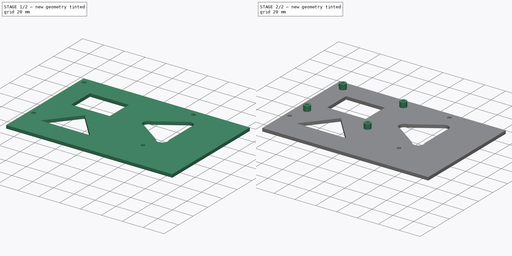
[diagram: build sequence overview — one tinted view per stage of 2, left to right]
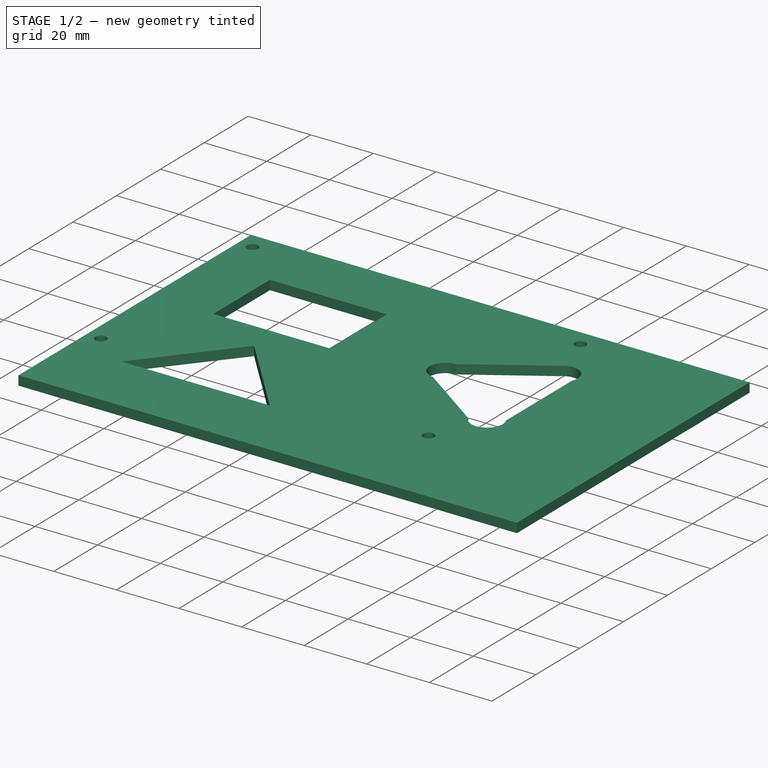
[diagram: stage 1 of 2 — iso view after this stage's code; geometry added in this stage tinted green]
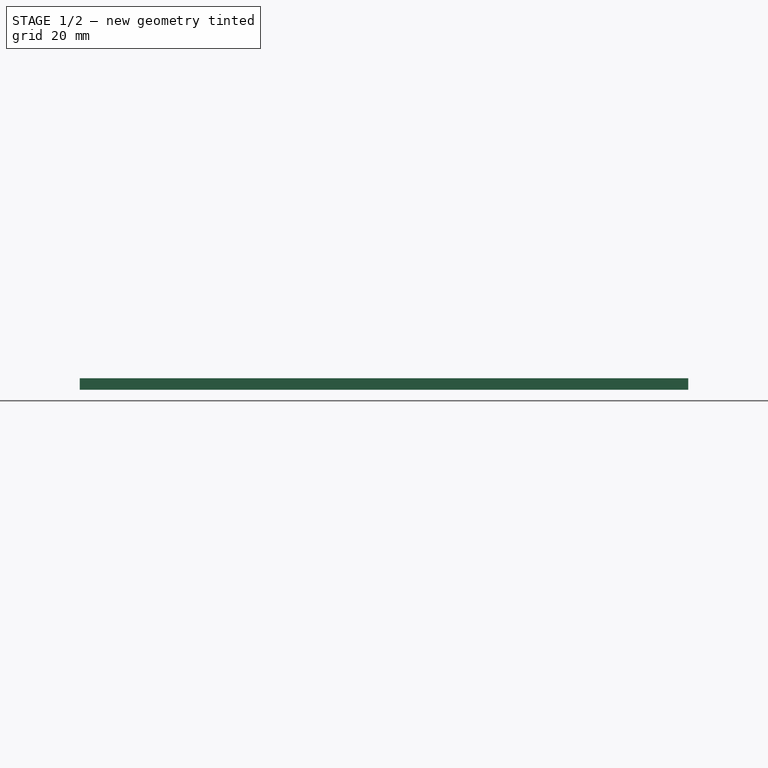
[diagram: stage 1 of 2 — front view after this stage's code; geometry added in this stage tinted green]
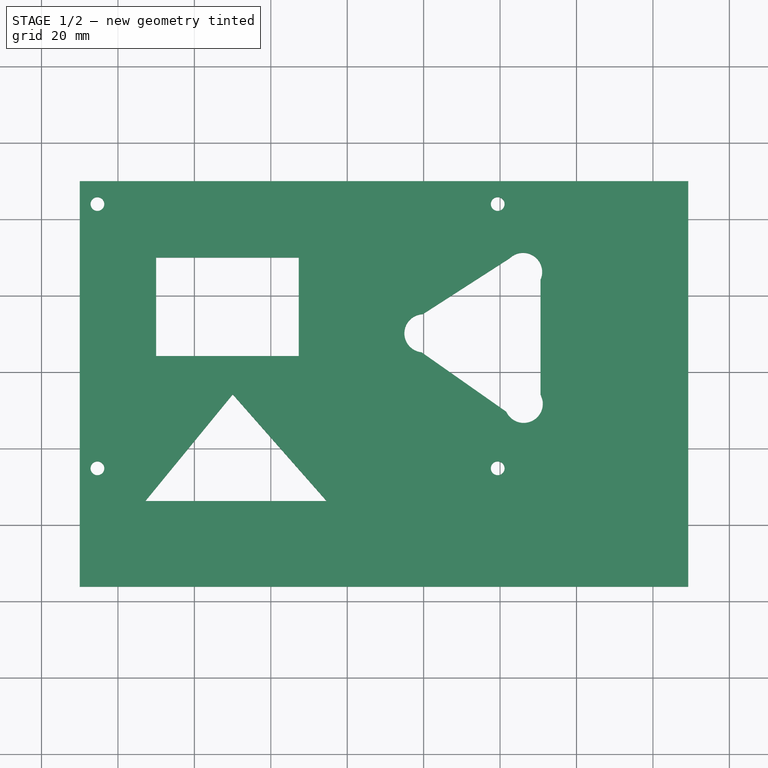
[diagram: stage 1 of 2 — top view after this stage's code; geometry added in this stage tinted green]
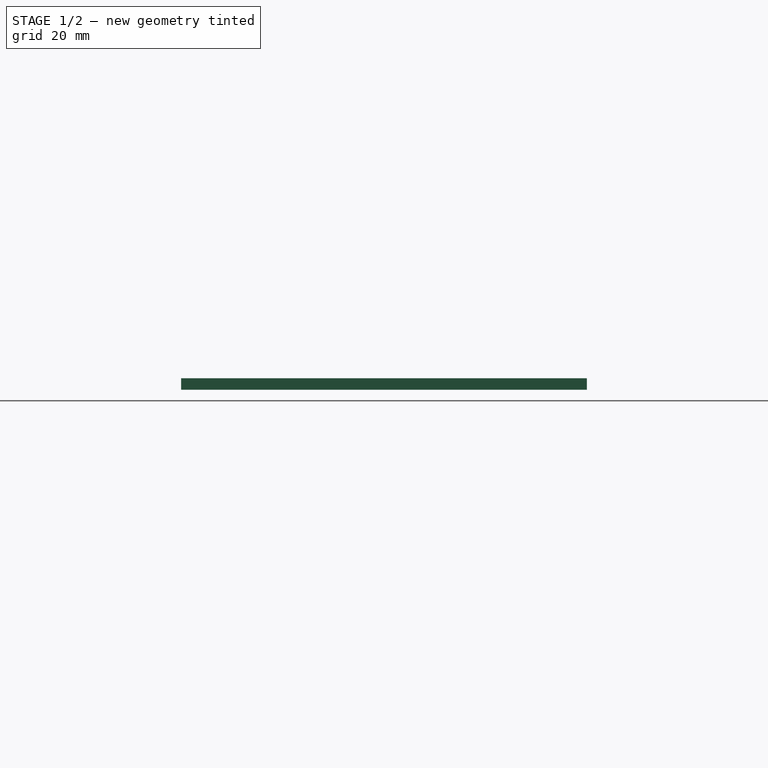
[diagram: stage 1 of 2 — right view after this stage's code; geometry added in this stage tinted green]
FCSTD DOCUMENT  (FreeCAD 0.19R24267 +99 (Git))
Label: RPI_plastic_box_adapter
License: All rights reserved
LicenseURL: http://en.wikipedia.org/wiki/All_rights_reserved
objects: Sketcher::SketchObject×2, PartDesign::Pad×2, PartDesign::Body×1
note: 7 computed .brp shape members not serialized (recipe doc carries the construction recipe); baked Part::Feature solids carry a one-line shape summary decoded from their .brp

FEATURE [Sketcher::SketchObject] Sketch001
  FullyConstrained = false
  MapMode = 5
  Support = -> [XY_Plane]
  sketch-geometry (25):
    g0: LineSegment StartX=-10 StartY=10 StartZ=0 EndX=149.247 EndY=10 EndZ=0
    g1: LineSegment StartX=149.247 StartY=10 StartZ=0 EndX=149.247 EndY=-96.1662 EndZ=0
    g2: LineSegment StartX=149.247 StartY=-96.1662 StartZ=0 EndX=-10 EndY=-96.1662 EndZ=0
    g3: LineSegment StartX=-10 StartY=-96.1662 StartZ=0 EndX=-10 EndY=10 EndZ=0
    g4: LineSegment StartX=10 StartY=-10 StartZ=0 EndX=47.3275 EndY=-10 EndZ=0
    g5: LineSegment StartX=47.3275 StartY=-10 StartZ=0 EndX=47.3275 EndY=-35.7909 EndZ=0
    g6: LineSegment StartX=47.3275 StartY=-35.7909 StartZ=0 EndX=10 EndY=-35.7909 EndZ=0
    g7: LineSegment StartX=10 StartY=-35.7909 StartZ=0 EndX=10 EndY=-10 EndZ=0
    g8: Circle CenterX=-5.37373 CenterY=3.99768 CenterZ=0 NormalX=0 NormalY=0 NormalZ=1 AngleXU=0 Radius=1.8
    g9: Circle CenterX=99.3812 CenterY=3.99768 CenterZ=0 NormalX=0 NormalY=0 NormalZ=1 AngleXU=0 Radius=1.8
    g10: Circle CenterX=-5.37373 CenterY=-65.1747 CenterZ=0 NormalX=0 NormalY=0 NormalZ=1 AngleXU=0 Radius=1.8
    g11: Circle CenterX=99.3812 CenterY=-65.1747 CenterZ=0 NormalX=0 NormalY=0 NormalZ=1 AngleXU=0 Radius=1.8
    g12: LineSegment StartX=-5.37373 StartY=3.99768 StartZ=0 EndX=99.3812 EndY=3.99768 EndZ=0
    g13: LineSegment StartX=99.3812 StartY=3.99768 StartZ=0 EndX=99.3812 EndY=-65.1747 EndZ=0
    g14: LineSegment StartX=99.3812 StartY=-65.1747 StartZ=0 EndX=-5.37373 EndY=-65.1747 EndZ=0
    g15: LineSegment StartX=-5.37373 StartY=-65.1747 StartZ=0 EndX=-5.37373 EndY=3.99768 EndZ=0
    g16: LineSegment StartX=102.544 StartY=-10.1707 StartZ=0 EndX=79.746 EndY=-24.8311 EndZ=0
    g17: LineSegment StartX=79.4573 StartY=-34.8022 StartZ=0 EndX=101.64 EndY=-50.3781 EndZ=0
    g18: LineSegment StartX=110.587 StartY=-45.9243 StartZ=0 EndX=110.587 EndY=-15.7973 EndZ=0
    g19: ArcOfCircle CenterX=106.019 CenterY=-13.7654 CenterZ=0 NormalX=0 NormalY=0 NormalZ=1 AngleXU=0 Radius=5 StartAngle=5.86469 EndAngle=8.6225
    g20: ArcOfCircle CenterX=79.9527 CenterY=-29.8268 CenterZ=0 NormalX=0 NormalY=0 NormalZ=1 AngleXU=0 Radius=5 StartAngle=1.61216 EndAngle=4.61314
    g21: ArcOfCircle CenterX=106.183 CenterY=-48.2905 CenterZ=0 NormalX=0 NormalY=0 NormalZ=1 AngleXU=0 Radius=5 StartAngle=3.57232 EndAngle=6.77616
    g22: LineSegment StartX=30.0435 StartY=-45.8129 StartZ=0 EndX=7.16619 EndY=-73.7306 EndZ=0
    g23: LineSegment StartX=7.16619 StartY=-73.7306 StartZ=0 EndX=54.6111 EndY=-73.7306 EndZ=0
    g24: LineSegment StartX=54.6111 StartY=-73.7306 StartZ=0 EndX=30.0435 EndY=-45.8129 EndZ=0
  constraints (51):
    c: Coincident(g0,g1)
    c: Coincident(g1,g2)
    c: Coincident(g2,g3)
    c: Coincident(g3,g0)
    c: Horizontal(g0)
    c: Horizontal(g2)
    c: Vertical(g1)
    c: Vertical(g3)
    c: DistanceY(g-1,g0) = 10
    c: DistanceX(g0,g-1) = 10
    c: Coincident(g4,g5)
    c: Coincident(g5,g6)
    c: Coincident(g6,g7)
    c: Coincident(g7,g4)
    c: Horizontal(g4)
    c: Horizontal(g6)
    c: Vertical(g5)
    c: Vertical(g7)
    c: DistanceY(g4,g-1) = 10
    c: DistanceX(g-1,g4) = 10
    c: Diameter(g8) = 3.6
    c: Equal(g9,g8)
    c: Equal(g10,g8)
    c: Equal(g8,g11)
    c: Coincident(g12,g13)
    c: Coincident(g13,g14)
    c: Coincident(g14,g15)
    c: Coincident(g15,g12)
    c: Horizontal(g12)
    c: Horizontal(g14)
    c: Vertical(g13)
    c: Vertical(g15)
    c: Coincident(g12,g8)
    c: Coincident(g13,g11)
    c: Coincident(g10,g14)
    c: Coincident(g9,g12)
    c: Coincident(g16,g20)
    c: Coincident(g20,g17)
    c: Coincident(g18,g21)
    c: Coincident(g21,g17)
    c: Coincident(g19,g18)
    c: Coincident(g16,g19)
    c: Vertical(g18)
    c: Diameter(g20) = 10
    c: Diameter(g19) = 10
    c: Diameter(g21) = 10
    c: Equal(g16,g17)
    c: Coincident(g23,g22)
    c: Horizontal(g23)
    c: Coincident(g24,g23)
    c: Coincident(g24,g22)
FEATURE [PartDesign::Pad] Pad
  Direction = (1,1,1)
  Length = 3
  Length2 = 100
  Profile = -> Sketch001
  Type = 0
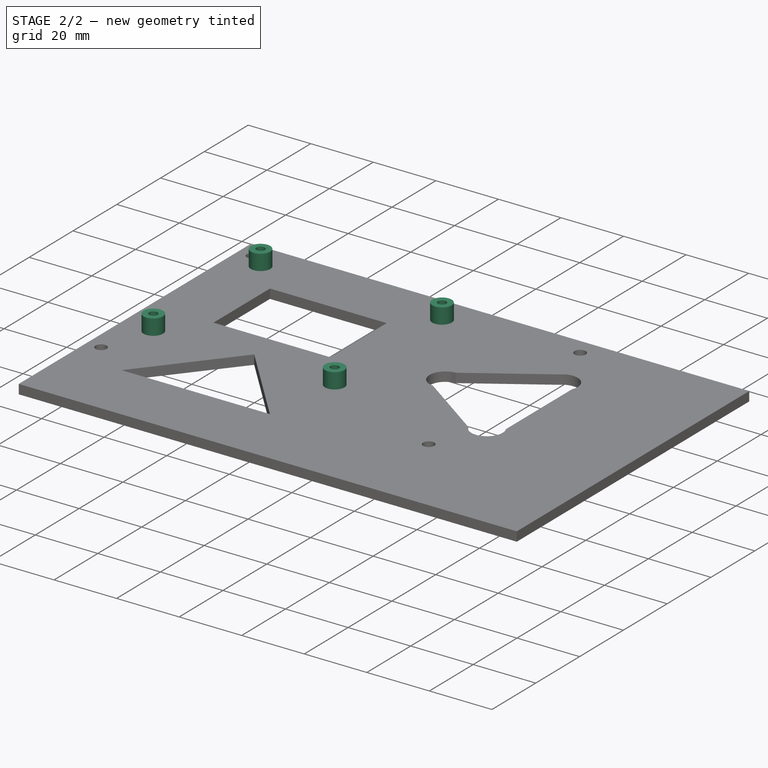
[diagram: stage 2 of 2 — iso view after this stage's code; geometry added in this stage tinted green]
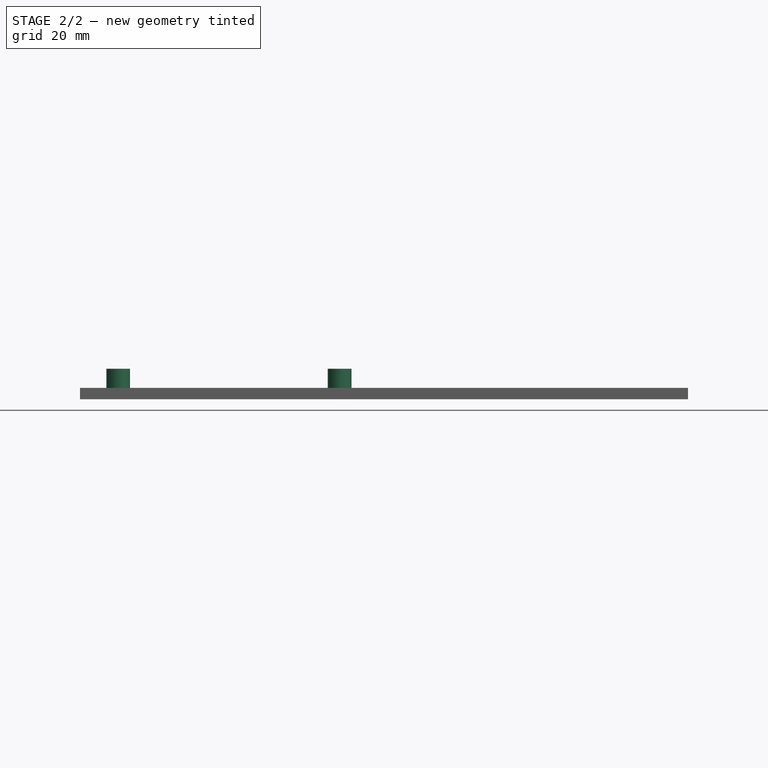
[diagram: stage 2 of 2 — front view after this stage's code; geometry added in this stage tinted green]
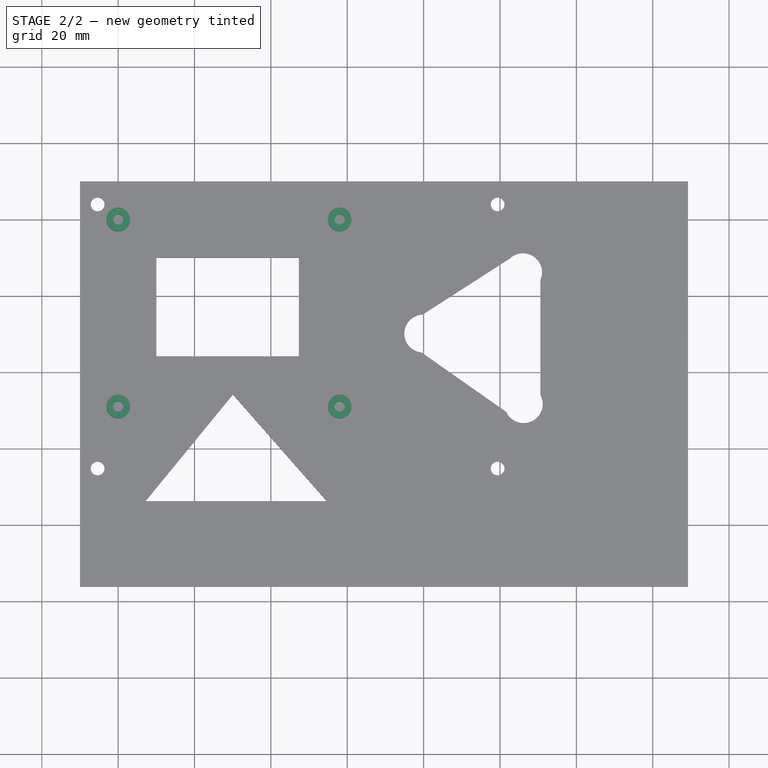
[diagram: stage 2 of 2 — top view after this stage's code; geometry added in this stage tinted green]
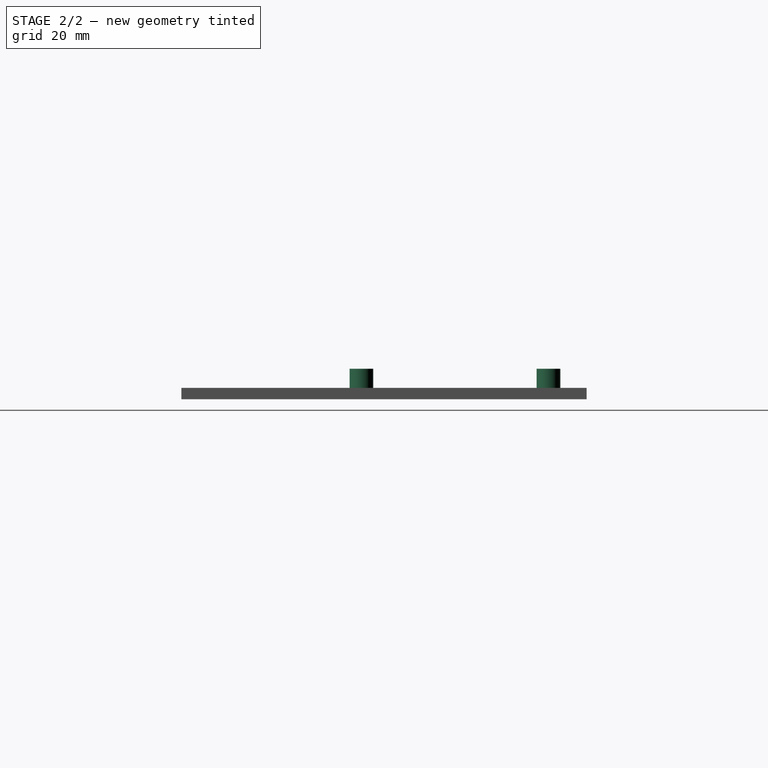
[diagram: stage 2 of 2 — right view after this stage's code; geometry added in this stage tinted green]
FEATURE [Sketcher::SketchObject] Sketch
  FullyConstrained = true
  MapMode = 5
  Placement = pos=(0,0,3) rot=(0,0,1;0rad)
  Support = -> [Pad]
  sketch-geometry (12):
    g0: Circle CenterX=0 CenterY=0 CenterZ=0 NormalX=0 NormalY=0 NormalZ=1 AngleXU=0 Radius=3.1
    g1: Circle CenterX=0 CenterY=0 CenterZ=0 NormalX=0 NormalY=0 NormalZ=1 AngleXU=0 Radius=1.35
    g2: Circle CenterX=58 CenterY=8e-16 CenterZ=0 NormalX=0 NormalY=0 NormalZ=1 AngleXU=0 Radius=3.1
    g3: Circle CenterX=58 CenterY=8e-16 CenterZ=0 NormalX=0 NormalY=0 NormalZ=1 AngleXU=0 Radius=1.35
    g4: Circle CenterX=5.9e-15 CenterY=-49 CenterZ=0 NormalX=0 NormalY=0 NormalZ=1 AngleXU=0 Radius=3.1
    g5: Circle CenterX=5.9e-15 CenterY=-49 CenterZ=0 NormalX=0 NormalY=0 NormalZ=1 AngleXU=0 Radius=1.35
    g6: Circle CenterX=58 CenterY=-49 CenterZ=0 NormalX=0 NormalY=0 NormalZ=1 AngleXU=0 Radius=3.1
    g7: Circle CenterX=58 CenterY=-49 CenterZ=0 NormalX=0 NormalY=0 NormalZ=1 AngleXU=0 Radius=1.35
    g8: LineSegment StartX=0 StartY=0 StartZ=0 EndX=5.9e-15 EndY=-49 EndZ=0
    g9: LineSegment StartX=5.9e-15 StartY=-49 StartZ=0 EndX=58 EndY=-49 EndZ=0
    g10: LineSegment StartX=58 StartY=8e-16 StartZ=0 EndX=58 EndY=-49 EndZ=0
    g11: LineSegment StartX=0 StartY=0 StartZ=0 EndX=58 EndY=8e-16 EndZ=0
  constraints (28):
    c: Coincident(g1,g0)
    c: Diameter(g0) = 6.2
    c: Diameter(g1) = 2.7
    c: Coincident(g3,g2)
    c: Equal(g0,g2) = 6.2
    c: Equal(g1,g3) = 2.7
    c: Coincident(g5,g4)
    c: Equal(g0,g4) = 6.2
    c: Equal(g1,g5) = 2.7
    c: Coincident(g7,g6)
    c: Equal(g0,g6) = 6.2
    c: Equal(g1,g7) = 2.7
    c: Coincident(g8,g0)
    c: Coincident(g8,g4)
    c: Coincident(g9,g4)
    c: Coincident(g9,g6)
    c: Horizontal(g9)
    c: Coincident(g10,g2)
    c: Coincident(g10,g6)
    c: Coincident(g11,g0)
    c: Coincident(g11,g2)
    c: Equal(g11,g9)
    c: Equal(g8,g10)
    c: Perpendicular(g10,g9,g6) = 1.5708
    c: DistanceX(g11,g11) = 58
    c: DistanceY(g8,g8) = 49
    c: PointOnObject(g0,g-2)
    c: PointOnObject(g0,g-1)
FEATURE [PartDesign::Pad] Pad004
  BaseFeature = -> Pad
  Direction = (1,1,1)
  Length = 5
  Length2 = 100
  Profile = -> Sketch
  Type = 0
FEATURE [PartDesign::Body] Body
  Group = -> [Sketch,Sketch001,Pad,Pad004]
  Origin = -> Origin
  Tip = -> Pad004
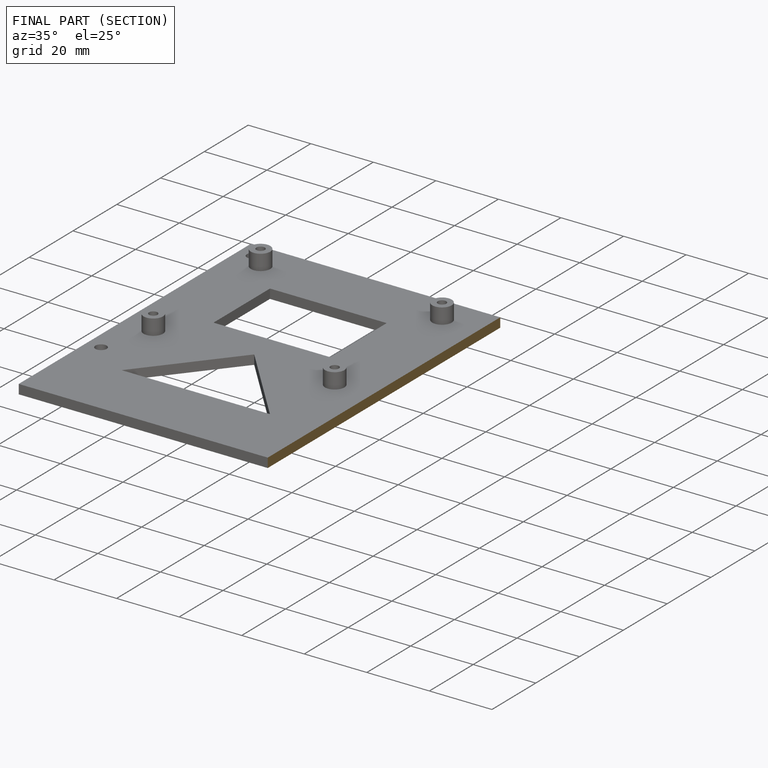
[diagram: finished part — half-section view (interior)]
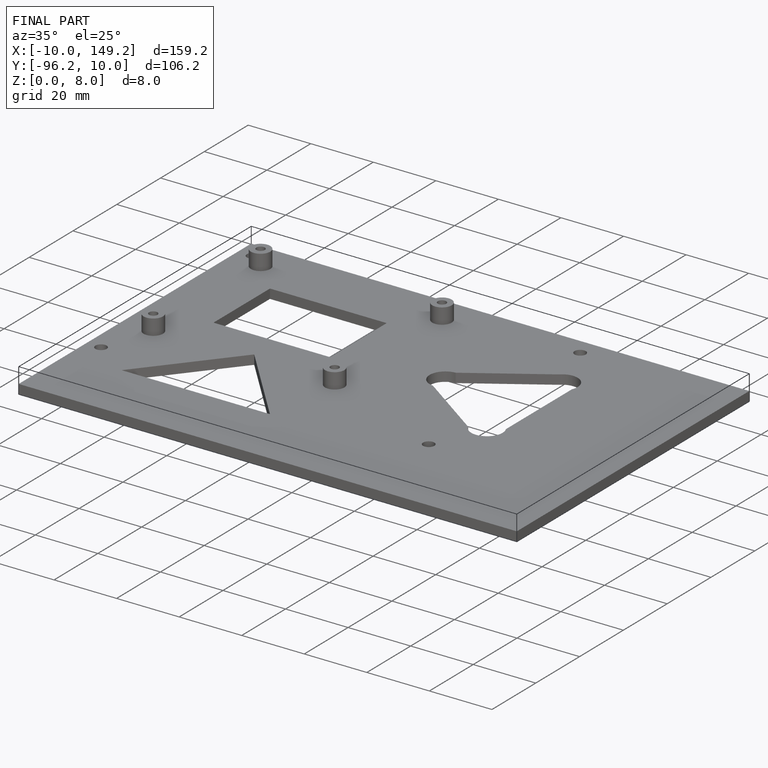
[diagram: finished part — iso view with bounding-box wireframe]
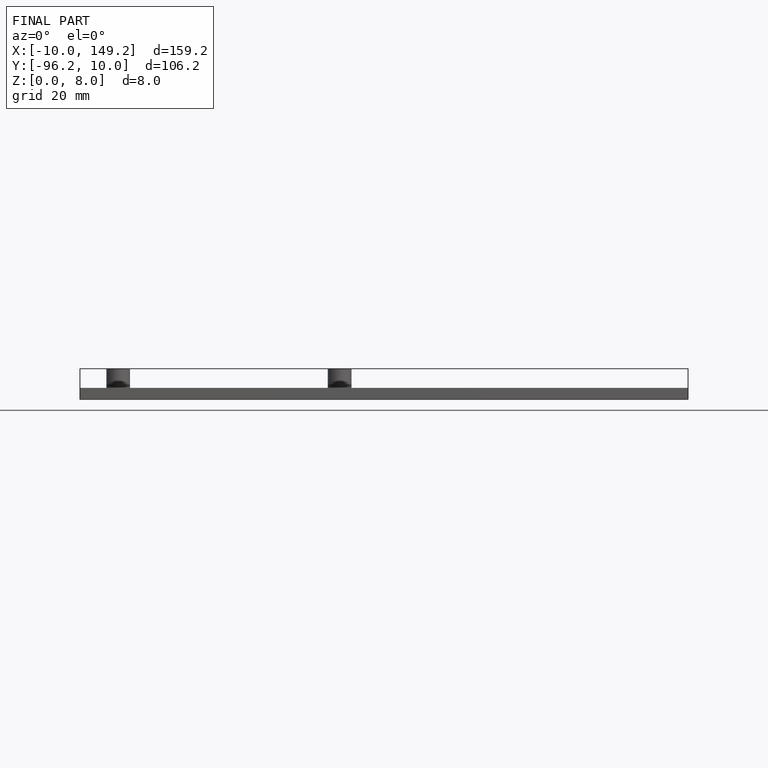
[diagram: finished part — front view with bounding-box wireframe]
